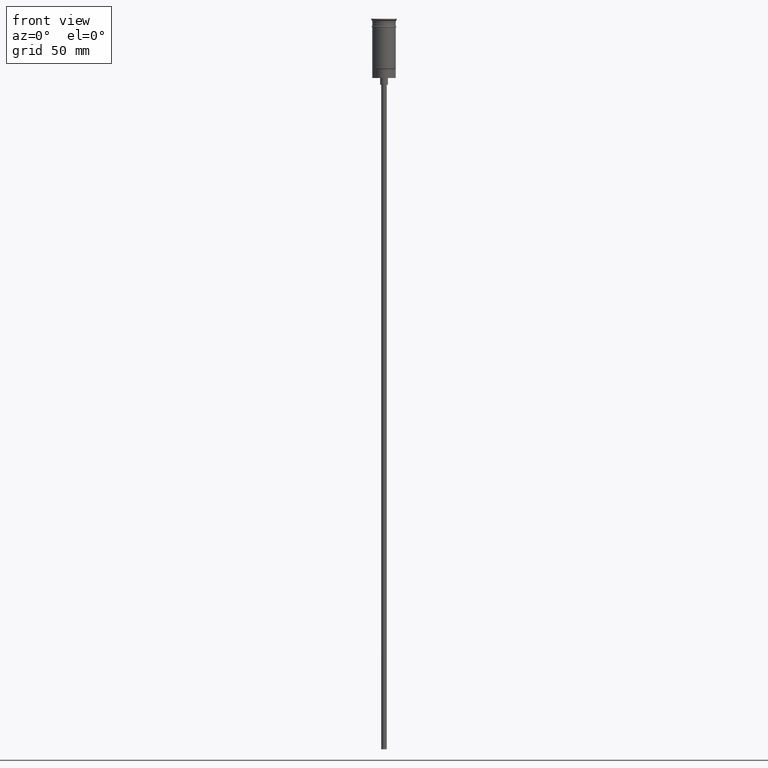
[diagram: clean part render]
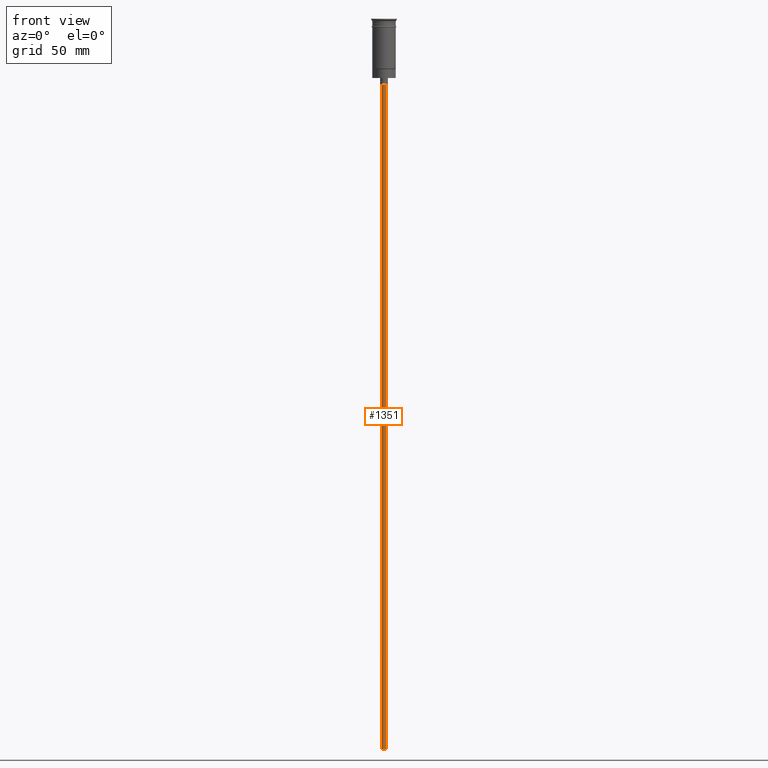
[diagram: same view with one face highlighted and labeled with its STEP entity id]
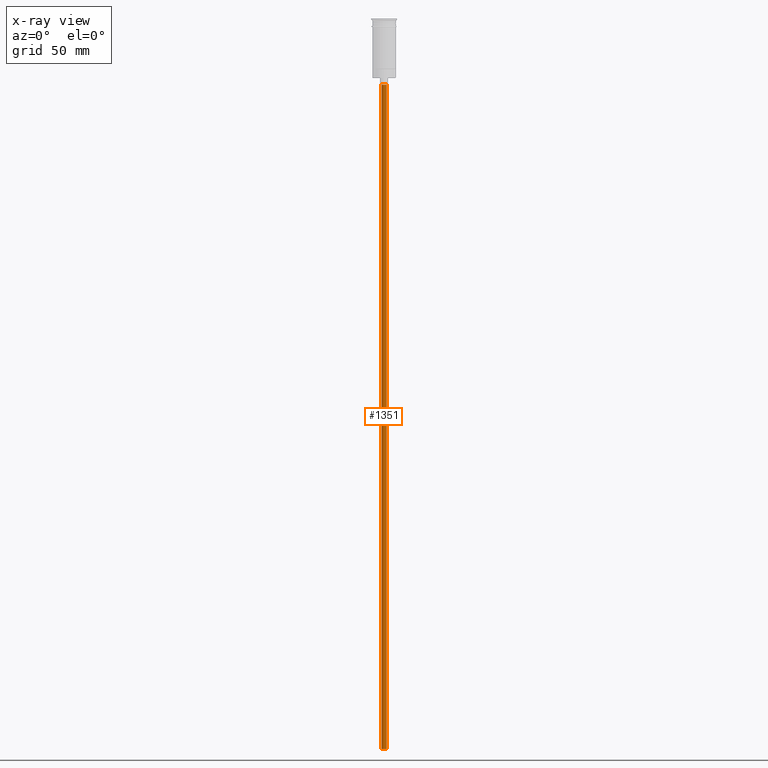
[diagram: x-ray of the same camera — body ghosted, the highlighted face saturated]
A machine part, front view. The second image highlights one B-rep face of the part: STEP entity #1351.
The next image is the same camera in x-ray: the body ghosted, the highlighted face saturated — about 0% of this face is hidden behind the body in this view.
In plain terms, the highlighted cylindrical surface (edge-blend (fillet) strip) has radius 1.25 mm, axis along (-0, -0, 1).
Its self-contained STEP definition (entity closure, byte-faithful):
#14 = CIRCLE ( 'NONE', #666, 1.250000000000000000 ) ;
#25 = CARTESIAN_POINT ( 'NONE',  ( -1.250000000000000000, 1.530808498934191571E-16, -326.5000000000000000 ) ) ;
#42 = ORIENTED_EDGE ( 'NONE', *, *, #1216, .T. ) ;
#50 = EDGE_LOOP ( 'NONE', ( #929, #378, #42, #1192 ) ) ;
#117 = AXIS2_PLACEMENT_3D ( 'NONE', #781, #942, #1436 ) ;
#196 = CIRCLE ( 'NONE', #321, 1.250000000000000000 ) ;
#236 = DIRECTION ( 'NONE',  ( -0.000000000000000000, -0.000000000000000000, 1.000000000000000000 ) ) ;
#240 = CARTESIAN_POINT ( 'NONE',  ( -1.250000000000000000, 1.530808498934191571E-16, -326.5000000000000000 ) ) ;
#264 = DIRECTION ( 'NONE',  ( 0.000000000000000000, 0.000000000000000000, -1.000000000000000000 ) ) ;
#305 = EDGE_CURVE ( 'NONE', #553, #892, #14, .T. ) ;
#321 = AXIS2_PLACEMENT_3D ( 'NONE', #1205, #1086, #340 ) ;
#340 = DIRECTION ( 'NONE',  ( -1.000000000000000000, 0.000000000000000000, 0.000000000000000000 ) ) ;
#378 = ORIENTED_EDGE ( 'NONE', *, *, #1092, .F. ) ;
#387 = CARTESIAN_POINT ( 'NONE',  ( 1.250000000000000000, 0.000000000000000000, -326.5000000000000000 ) ) ;
#406 = CYLINDRICAL_SURFACE ( 'NONE', #117, 1.250000000000000000 ) ;
#418 = VERTEX_POINT ( 'NONE', #1125 ) ;
#522 = DIRECTION ( 'NONE',  ( -1.000000000000000000, 0.000000000000000000, 0.000000000000000000 ) ) ;
#553 = VERTEX_POINT ( 'NONE', #1162 ) ;
#666 = AXIS2_PLACEMENT_3D ( 'NONE', #1372, #264, #522 ) ;
#689 = DIRECTION ( 'NONE',  ( -0.000000000000000000, -0.000000000000000000, 1.000000000000000000 ) ) ;
#781 = CARTESIAN_POINT ( 'NONE',  ( 0.000000000000000000, 0.000000000000000000, -326.5000000000000000 ) ) ;
#892 = VERTEX_POINT ( 'NONE', #1409 ) ;
#921 = VECTOR ( 'NONE', #236, 1000.000000000000000 ) ;
#929 = ORIENTED_EDGE ( 'NONE', *, *, #1345, .F. ) ;
#942 = DIRECTION ( 'NONE',  ( -0.000000000000000000, -0.000000000000000000, 1.000000000000000000 ) ) ;
#949 = FACE_OUTER_BOUND ( 'NONE', #50, .T. ) ;
#1025 = LINE ( 'NONE', #25, #1514 ) ;
#1086 = DIRECTION ( 'NONE',  ( 0.000000000000000000, 0.000000000000000000, -1.000000000000000000 ) ) ;
#1092 = EDGE_CURVE ( 'NONE', #418, #1596, #196, .T. ) ;
#1125 = CARTESIAN_POINT ( 'NONE',  ( 1.250000000000000000, 0.000000000000000000, -326.5000000000000000 ) ) ;
#1162 = CARTESIAN_POINT ( 'NONE',  ( 1.250000000000000000, 0.000000000000000000, -29.50000000000000000 ) ) ;
#1192 = ORIENTED_EDGE ( 'NONE', *, *, #305, .T. ) ;
#1205 = CARTESIAN_POINT ( 'NONE',  ( 0.000000000000000000, 0.000000000000000000, -326.5000000000000000 ) ) ;
#1216 = EDGE_CURVE ( 'NONE', #418, #553, #1501, .T. ) ;
#1345 = EDGE_CURVE ( 'NONE', #1596, #892, #1025, .T. ) ;
#1351 = ADVANCED_FACE ( 'NONE', ( #949 ), #406, .T. ) ;
#1372 = CARTESIAN_POINT ( 'NONE',  ( 0.000000000000000000, 0.000000000000000000, -29.50000000000000000 ) ) ;
#1409 = CARTESIAN_POINT ( 'NONE',  ( -1.250000000000000000, 1.530808498934191571E-16, -29.50000000000000000 ) ) ;
#1436 = DIRECTION ( 'NONE',  ( 1.000000000000000000, 0.000000000000000000, 0.000000000000000000 ) ) ;
#1501 = LINE ( 'NONE', #387, #921 ) ;
#1514 = VECTOR ( 'NONE', #689, 1000.000000000000000 ) ;
#1596 = VERTEX_POINT ( 'NONE', #240 ) ;